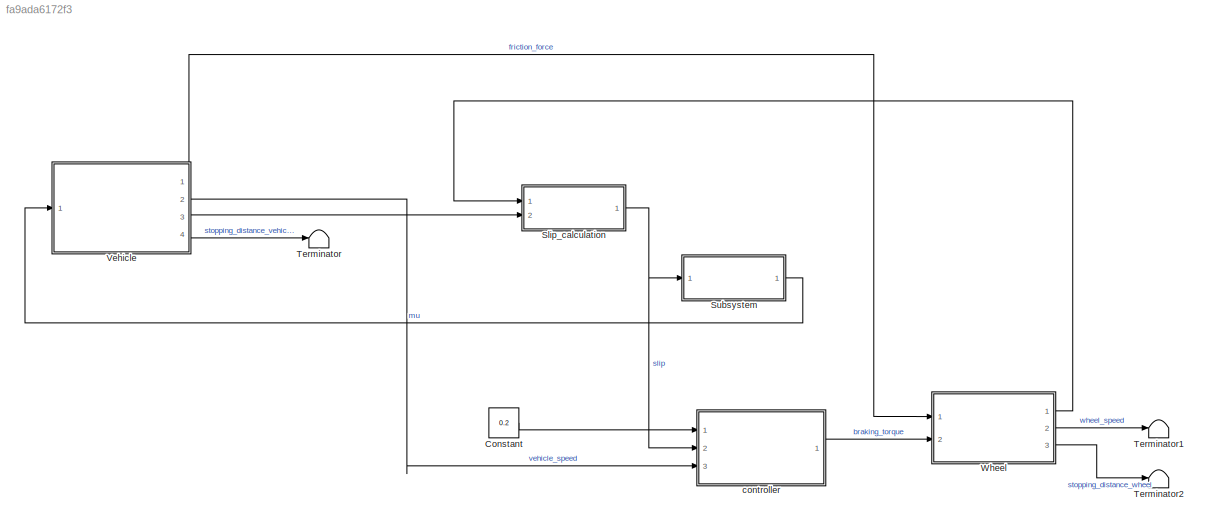
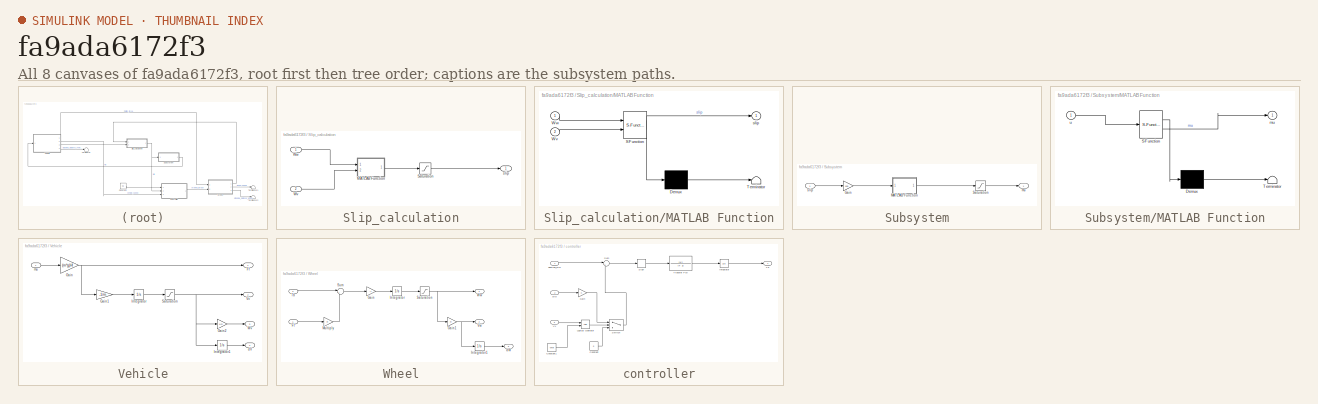
[diagram: thumbnail index - all 8 canvases of the model, root first then tree order]
MODEL slx_fa9ada6172f3
KIND model
CONFIG AbsTol = auto
CONFIG EnableMultiTasking = off
CONFIG FixedStep = auto
CONFIG MaxStep = auto
CONFIG MinStep = auto
CONFIG RelTol = 1e-3
CONFIG SampleTimeConstraint = Unconstrained
CONFIG SolverName = VariableStepAuto
CONFIG StartTime = 0.0
CONFIG StopTime = 10.0
BLOCK [Constant] Constant
  Value = 0.2
BLOCK [SubSystem] Slip_calculation
  Ports = [2, 1]
  RequestExecContextInheritance = off
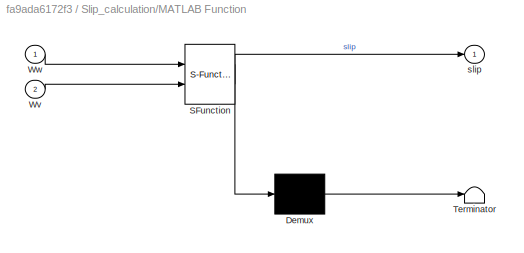
BLOCK [SubSystem] Slip_calculation/MATLAB Function
  ErrorFcn = Stateflow.Translate.translate
  PermitHierarchicalResolution = ExplicitOnly
  Ports = [2, 1]
  RequestExecContextInheritance = off
  SFBlockType = MATLAB Function
  TreatAsAtomicUnit = on
BLOCK [Demux] Slip_calculation/MATLAB Function/ Demux 
  Outputs = 1
  Ports = [1, 1]
BLOCK [S-Function] Slip_calculation/MATLAB Function/ SFunction 
  EnableBusSupport = on
  FunctionName = sf_sfun
  PortCounts = [2 2]
  Ports = [2, 2]
  SFcnIsStateOwnerBlock = off
  SFunctionDeploymentMode = off
  Tag = Stateflow S-Function 2
BLOCK [Terminator] Slip_calculation/MATLAB Function/ Terminator 
BLOCK [Inport] Slip_calculation/MATLAB Function/Wv
  Port = 2
BLOCK [Inport] Slip_calculation/MATLAB Function/Ww
BLOCK [Outport] Slip_calculation/MATLAB Function/slip
BLOCK [Saturate] Slip_calculation/Saturation
  LowerLimit = 0
  UpperLimit = 1
BLOCK [Inport] Slip_calculation/Wv
  Port = 2
BLOCK [Inport] Slip_calculation/Ww
BLOCK [Outport] Slip_calculation/slip
BLOCK [SubSystem] Subsystem
  Ports = [1, 1]
  RequestExecContextInheritance = off
BLOCK [Gain] Subsystem/Gain
  Gain = 100
BLOCK [SubSystem] Subsystem/MATLAB Function
  ErrorFcn = Stateflow.Translate.translate
  PermitHierarchicalResolution = ExplicitOnly
  Ports = [1, 1]
  RequestExecContextInheritance = off
  SFBlockType = MATLAB Function
  TreatAsAtomicUnit = on
BLOCK [Demux] Subsystem/MATLAB Function/ Demux 
  Outputs = 1
  Ports = [1, 1]
BLOCK [S-Function] Subsystem/MATLAB Function/ SFunction 
  EnableBusSupport = on
  FunctionName = sf_sfun
  PortCounts = [1 2]
  Ports = [1, 2]
  SFcnIsStateOwnerBlock = off
  SFunctionDeploymentMode = off
  Tag = Stateflow S-Function 1
BLOCK [Terminator] Subsystem/MATLAB Function/ Terminator 
BLOCK [Outport] Subsystem/MATLAB Function/mu
BLOCK [Inport] Subsystem/MATLAB Function/u
BLOCK [Saturate] Subsystem/Saturation
  LowerLimit = 0
  UpperLimit = 1
BLOCK [Outport] Subsystem/mu
BLOCK [Inport] Subsystem/slip
BLOCK [Terminator] Terminator
BLOCK [Terminator] Terminator1
BLOCK [Terminator] Terminator2
BLOCK [SubSystem] Vehicle
  Ports = [1, 4]
  RequestExecContextInheritance = off
BLOCK [Outport] Vehicle/Ff
BLOCK [Gain] Vehicle/Gain
  Gain = (m*g)/4
BLOCK [Gain] Vehicle/Gain1
  Gain = -1/m
BLOCK [Gain] Vehicle/Gain2
  Gain = 1/R
BLOCK [Integrator] Vehicle/Integrator
  InitialCondition = V0
  Ports = [1, 1]
BLOCK [Integrator] Vehicle/Integrator1
  Ports = [1, 1]
BLOCK [Saturate] Vehicle/Saturation
  LowerLimit = 0.001
  UpperLimit = 1000
BLOCK [Outport] Vehicle/Vv
  Port = 2
BLOCK [Outport] Vehicle/Wv
  Port = 3
BLOCK [Outport] Vehicle/dV
  Port = 4
BLOCK [Inport] Vehicle/mu
BLOCK [SubSystem] Wheel
  Ports = [2, 3]
  RequestExecContextInheritance = off
BLOCK [Inport] Wheel/Ff
BLOCK [Gain] Wheel/Gain
  Gain = -J
BLOCK [Gain] Wheel/Gain1
  Gain = R
BLOCK [Integrator] Wheel/Integrator
  InitialCondition = 28/R
  Ports = [1, 1]
BLOCK [Integrator] Wheel/Integrator1
  Ports = [1, 1]
BLOCK [Gain] Wheel/Multiply
  Gain = R
BLOCK [Saturate] Wheel/Saturation
  LowerLimit = 0
  UpperLimit = 1000
BLOCK [Sum] Wheel/Sum
  Inputs = |+-
  Ports = [2, 1]
BLOCK [Inport] Wheel/Tb
  Port = 2
BLOCK [Outport] Wheel/Vw
  Port = 2
BLOCK [Outport] Wheel/Ww
BLOCK [Outport] Wheel/dW
  Port = 3
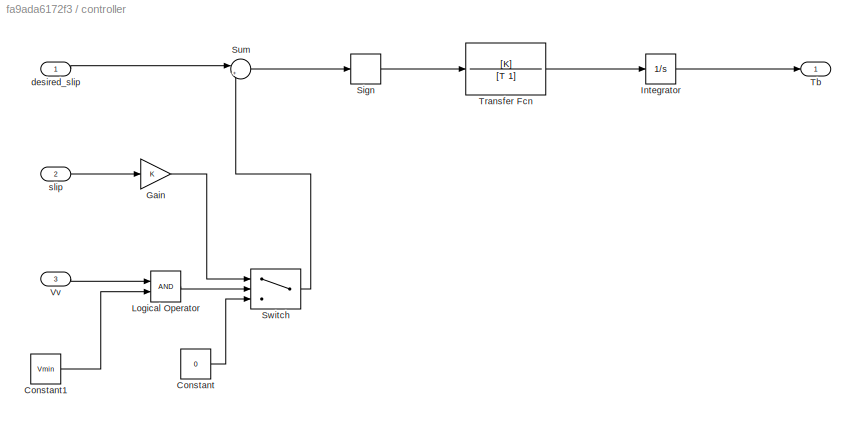
BLOCK [SubSystem] controller
  Ports = [3, 1]
  RequestExecContextInheritance = off
BLOCK [Constant] controller/Constant
  Value = 0
BLOCK [Constant] controller/Constant1
  Value = Vmin
BLOCK [Gain] controller/Gain
BLOCK [Integrator] controller/Integrator
  LimitOutput = on
  LowerSaturationLimit = 0
  Ports = [1, 1]
  UpperSaturationLimit = Tbmax
BLOCK [Logic] controller/Logical Operator
  AllPortsSameDT = off
  OutDataTypeStr = boolean
  Ports = [2, 1]
BLOCK [Signum] controller/Sign
BLOCK [Sum] controller/Sum
  Inputs = |+-
  Ports = [2, 1]
BLOCK [Switch] controller/Switch
  Criteria = u2 > Threshold
  InputSameDT = off
  SaturateOnIntegerOverflow = off
BLOCK [Outport] controller/Tb
BLOCK [TransferFcn] controller/Transfer Fcn
  Denominator = [T 1]
  Numerator = [K]
BLOCK [Inport] controller/Vv
  Port = 3
BLOCK [Inport] controller/desired_slip
BLOCK [Inport] controller/slip
  Port = 2
LINE Constant:1 -> controller:1
LINE Slip_calculation/MATLAB Function:1 -> Slip_calculation/Saturation:1
LINE Slip_calculation/Saturation:1 -> Slip_calculation/slip:1
LINE Slip_calculation/Wv:1 -> Slip_calculation/MATLAB Function:2
LINE Slip_calculation/Ww:1 -> Slip_calculation/MATLAB Function:1
NET Slip_calculation:1 -> Subsystem:1, controller:2
LINE Subsystem/Gain:1 -> Subsystem/MATLAB Function:1
LINE Subsystem/MATLAB Function:1 -> Subsystem/Saturation:1
LINE Subsystem/Saturation:1 -> Subsystem/mu:1
LINE Subsystem/slip:1 -> Subsystem/Gain:1
LINE Subsystem:1 -> Vehicle:1
LINE Vehicle/Gain1:1 -> Vehicle/Integrator:1
LINE Vehicle/Gain2:1 -> Vehicle/Wv:1
NET Vehicle/Gain:1 -> Vehicle/Ff:1, Vehicle/Gain1:1
LINE Vehicle/Integrator1:1 -> Vehicle/dV:1
LINE Vehicle/Integrator:1 -> Vehicle/Saturation:1
NET Vehicle/Saturation:1 -> Vehicle/Gain2:1, Vehicle/Integrator1:1, Vehicle/Vv:1
LINE Vehicle/mu:1 -> Vehicle/Gain:1
LINE Vehicle:1 -> Wheel:1
LINE Vehicle:2 -> controller:3
LINE Vehicle:3 -> Slip_calculation:2
LINE Vehicle:4 -> Terminator:1
LINE Wheel/Ff:1 -> Wheel/Multiply:1
NET Wheel/Gain1:1 -> Wheel/Integrator1:1, Wheel/Vw:1
LINE Wheel/Gain:1 -> Wheel/Integrator:1
LINE Wheel/Integrator1:1 -> Wheel/dW:1
LINE Wheel/Integrator:1 -> Wheel/Saturation:1
LINE Wheel/Multiply:1 -> Wheel/Sum:2
NET Wheel/Saturation:1 -> Wheel/Gain1:1, Wheel/Ww:1
LINE Wheel/Sum:1 -> Wheel/Gain:1
LINE Wheel/Tb:1 -> Wheel/Sum:1
LINE Wheel:1 -> Slip_calculation:1
LINE Wheel:2 -> Terminator1:1
LINE Wheel:3 -> Terminator2:1
LINE controller/Constant1:1 -> controller/Logical Operator:2
LINE controller/Constant:1 -> controller/Switch:3
LINE controller/Gain:1 -> controller/Switch:1
LINE controller/Integrator:1 -> controller/Tb:1
LINE controller/Logical Operator:1 -> controller/Switch:2
LINE controller/Sign:1 -> controller/Transfer Fcn:1
LINE controller/Sum:1 -> controller/Sign:1
LINE controller/Switch:1 -> controller/Sum:2
LINE controller/Transfer Fcn:1 -> controller/Integrator:1
LINE controller/Vv:1 -> controller/Logical Operator:1
LINE controller/desired_slip:1 -> controller/Sum:1
LINE controller/slip:1 -> controller/Gain:1
LINE controller:1 -> Wheel:2
note: NET lines group one-source signal fan-out (src -> all destinations, sorted); 1:1 wires keep LINE
CHART Slip_calculation/MATLAB Function states=1 transitions=1
  STATE_LABEL 'eML_blk_kernel()'
  STATE_LABEL 'SCRIPT:\nfunction slip = fcn(Ww, Wv)\n\nslip=1-(Ww/(Wv+(Wv==0)*eps));'
CHART Subsystem/MATLAB Function states=1 transitions=1
  STATE_LABEL 'eML_blk_kernel()'
  STATE_LABEL 'SCRIPT:\nfunction mu = fcn(u)\n\nmu=0.7*(1.07*(1-exp(-0.5*u)-0.003*u));\n'
CHART  states=0 transitions=0
CHART  states=0 transitions=0
